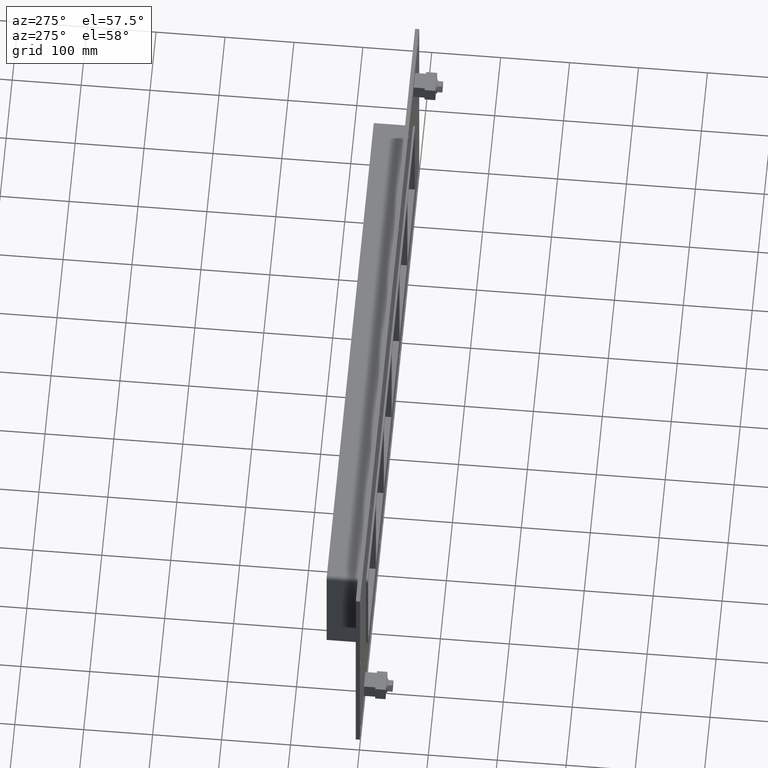
[diagram: clean part render]
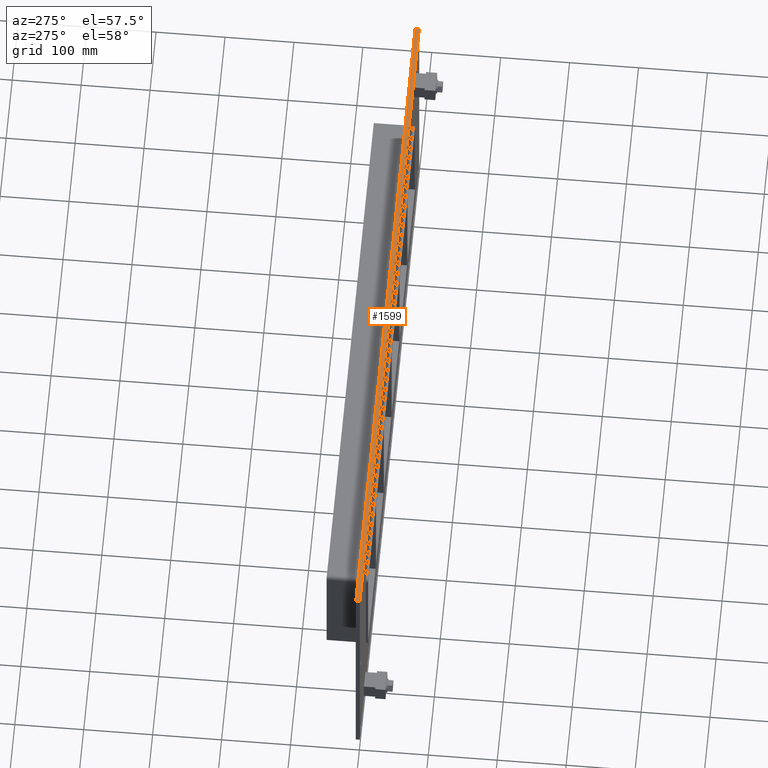
[diagram: same view with one face highlighted and labeled with its STEP entity id]
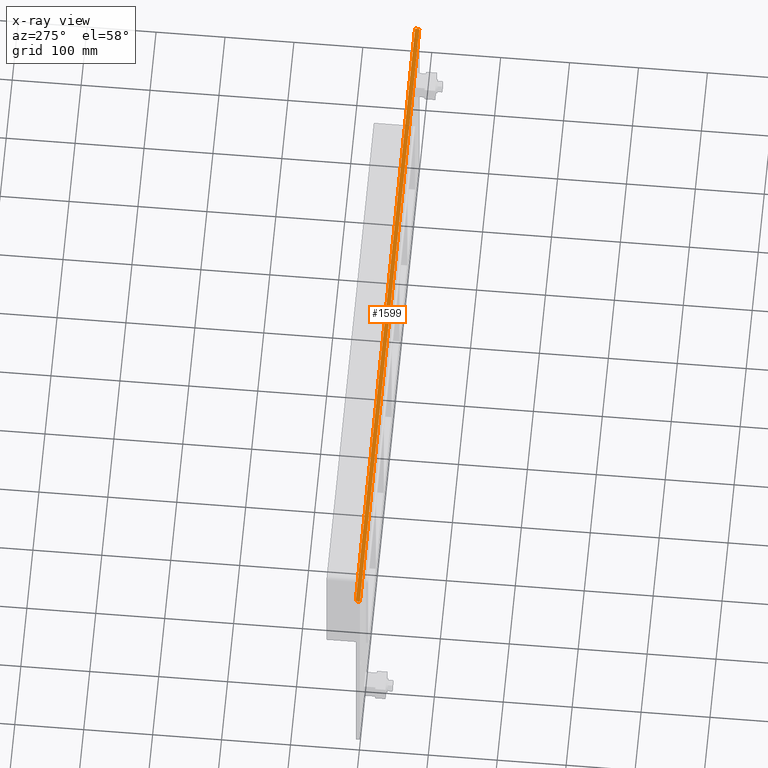
[diagram: x-ray of the same camera — body ghosted, the highlighted face saturated]
A machine part, auxiliary view. The second image highlights one B-rep face of the part: STEP entity #1599.
The next image is the same camera in x-ray: the body ghosted, the highlighted face saturated — about 0% of this face is hidden behind the body in this view.
In plain terms, the highlighted planar face has unit normal (0, 0, 1).
Its self-contained STEP definition (entity closure, byte-faithful):
#1221=CARTESIAN_POINT('',(-492.50000000000006,6.000000000000001,185.74999999999994));
#1222=VERTEX_POINT('',#1221);
#1223=CARTESIAN_POINT('',(492.50000000000006,6.000000000000001,185.74999999999994));
#1224=VERTEX_POINT('',#1223);
#1225=CARTESIAN_POINT('',(-492.50000000000006,6.000000000000001,185.74999999999994));
#1226=DIRECTION('',(1.0,0.0,0.0));
#1227=VECTOR('',#1226,985.00000000000011);
#1228=LINE('',#1225,#1227);
#1229=EDGE_CURVE('',#1222,#1224,#1228,.T.);
#1379=CARTESIAN_POINT('',(-492.50000000000006,0.0,185.74999999999994));
#1380=VERTEX_POINT('',#1379);
#1381=CARTESIAN_POINT('',(492.50000000000006,0.0,185.74999999999994));
#1382=VERTEX_POINT('',#1381);
#1383=CARTESIAN_POINT('',(-492.50000000000006,0.0,185.74999999999994));
#1384=DIRECTION('',(1.0,0.0,0.0));
#1385=VECTOR('',#1384,985.00000000000011);
#1386=LINE('',#1383,#1385);
#1387=EDGE_CURVE('',#1380,#1382,#1386,.T.);
#1538=CARTESIAN_POINT('',(-492.50000000000006,0.0,185.74999999999994));
#1539=DIRECTION('',(0.0,1.0,0.0));
#1540=VECTOR('',#1539,6.000000000000001);
#1541=LINE('',#1538,#1540);
#1542=EDGE_CURVE('',#1380,#1222,#1541,.T.);
#1579=CARTESIAN_POINT('',(492.50000000000006,0.0,185.74999999999994));
#1580=DIRECTION('',(0.0,1.0,0.0));
#1581=VECTOR('',#1580,6.000000000000001);
#1582=LINE('',#1579,#1581);
#1583=EDGE_CURVE('',#1382,#1224,#1582,.T.);
#1588=CARTESIAN_POINT('',(-492.50000000000006,0.0,185.74999999999994));
#1589=DIRECTION('',(0.0,0.0,1.0));
#1590=DIRECTION('',(1.0,0.0,0.0));
#1591=AXIS2_PLACEMENT_3D('',#1588,#1589,#1590);
#1592=PLANE('',#1591);
#1593=ORIENTED_EDGE('',*,*,#1387,.T.);
#1594=ORIENTED_EDGE('',*,*,#1583,.T.);
#1595=ORIENTED_EDGE('',*,*,#1229,.F.);
#1596=ORIENTED_EDGE('',*,*,#1542,.F.);
#1597=EDGE_LOOP('',(#1593,#1594,#1595,#1596));
#1598=FACE_OUTER_BOUND('',#1597,.T.);
#1599=ADVANCED_FACE('',(#1598),#1592,.T.);